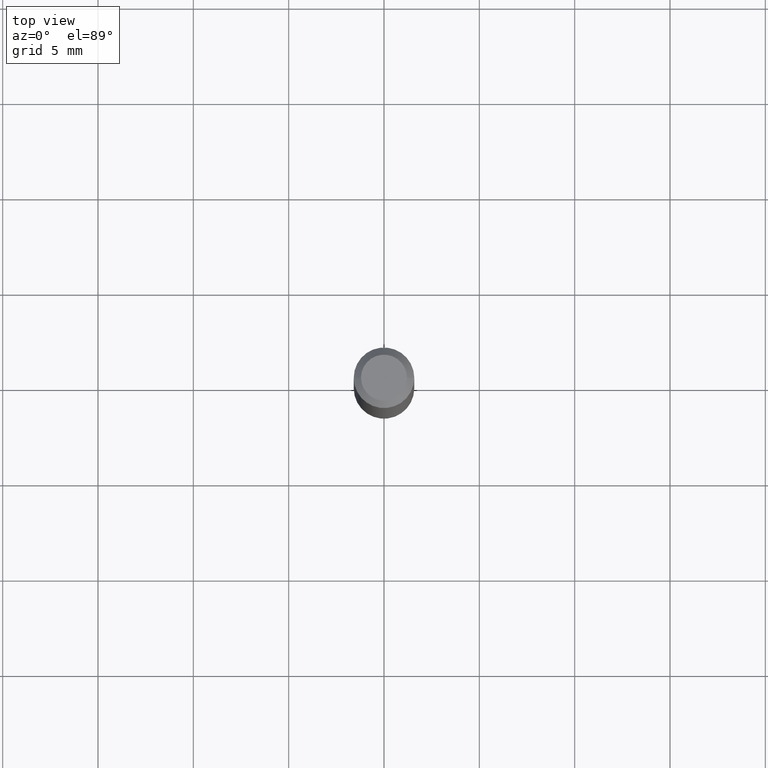
[diagram: clean part render]
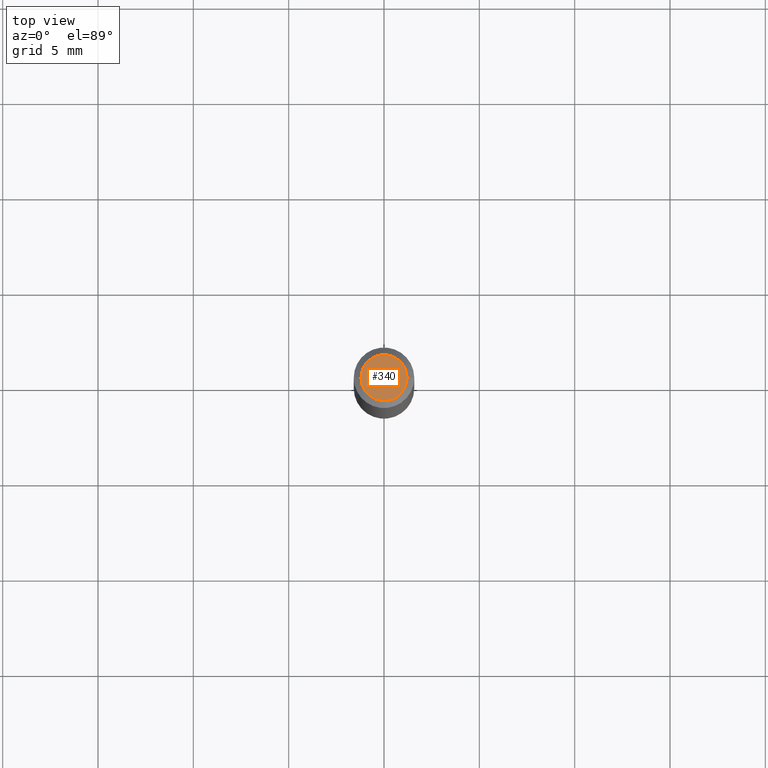
[diagram: same view with one face highlighted and labeled with its STEP entity id]
A machine part, top view. The second image highlights one B-rep face of the part: STEP entity #340.
In plain terms, the highlighted planar face has unit normal (0, -0, -1).
Its self-contained STEP definition (entity closure, byte-faithful):
#16 = CARTESIAN_POINT ( 'NONE',  ( -5.723698685194923234E-45, 8.171924785126947293E-31, 2.340532281875119882E-16 ) ) ;
#62 = DIRECTION ( 'NONE',  ( -2.445468806185136597E-29, 3.491481338843145583E-15, 1.000000000000000000 ) ) ;
#67 = VERTEX_POINT ( 'NONE', #323 ) ;
#79 = CIRCLE ( 'NONE', #108, 0.04749999999999999362 ) ;
#92 = CIRCLE ( 'NONE', #99, 0.04749999999999999362 ) ;
#99 = AXIS2_PLACEMENT_3D ( 'NONE', #384, #62, #424 ) ;
#108 = AXIS2_PLACEMENT_3D ( 'NONE', #16, #192, #404 ) ;
#115 = CARTESIAN_POINT ( 'NONE',  ( -0.04749999999999999362, 3.578768372314215436E-16, 2.340532281875096216E-16 ) ) ;
#191 = ORIENTED_EDGE ( 'NONE', *, *, #466, .T. ) ;
#192 = DIRECTION ( 'NONE',  ( -2.445468806185136597E-29, 3.491481338843145583E-15, 1.000000000000000000 ) ) ;
#224 = DIRECTION ( 'NONE',  ( 2.438088387897960049E-29, -3.491481338843145188E-15, -1.000000000000000000 ) ) ;
#233 = EDGE_CURVE ( 'NONE', #411, #67, #92, .T. ) ;
#296 = DIRECTION ( 'NONE',  ( -1.000000000000000000, 6.982962677686265922E-15, -4.876176775795935793E-29 ) ) ;
#323 = CARTESIAN_POINT ( 'NONE',  ( 0.04749999999999999362, -4.035134999187574186E-16, 2.340532281875146013E-16 ) ) ;
#324 = FACE_OUTER_BOUND ( 'NONE', #419, .T. ) ;
#330 = CARTESIAN_POINT ( 'NONE',  ( 3.316907271900976096E-16, 0.04749999999999999362, -4.881874950129340235E-17 ) ) ;
#332 = PLANE ( 'NONE',  #394 ) ;
#340 = ADVANCED_FACE ( 'NONE', ( #324 ), #332, .F. ) ;
#384 = CARTESIAN_POINT ( 'NONE',  ( -5.723698685194923234E-45, 8.171924785126947293E-31, 2.340532281875119882E-16 ) ) ;
#387 = ORIENTED_EDGE ( 'NONE', *, *, #233, .T. ) ;
#394 = AXIS2_PLACEMENT_3D ( 'NONE', #330, #224, #296 ) ;
#404 = DIRECTION ( 'NONE',  ( 1.000000000000000000, -6.982962677686267499E-15, 4.852736867747366768E-29 ) ) ;
#411 = VERTEX_POINT ( 'NONE', #115 ) ;
#419 = EDGE_LOOP ( 'NONE', ( #387, #191 ) ) ;
#424 = DIRECTION ( 'NONE',  ( 1.000000000000000000, -6.982962677686267499E-15, 4.852736867747366768E-29 ) ) ;
#466 = EDGE_CURVE ( 'NONE', #67, #411, #79, .T. ) ;